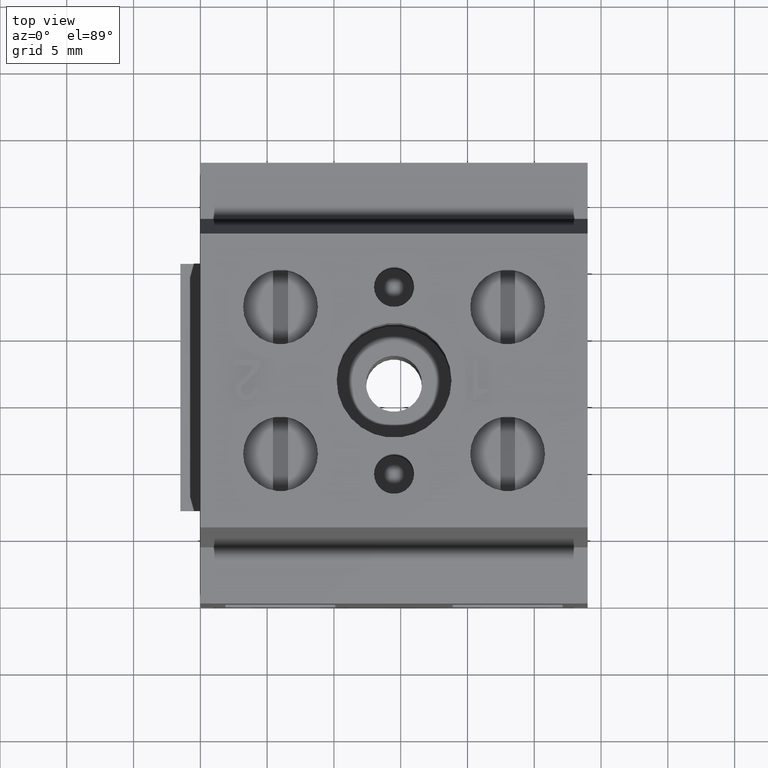
[diagram: clean part render]
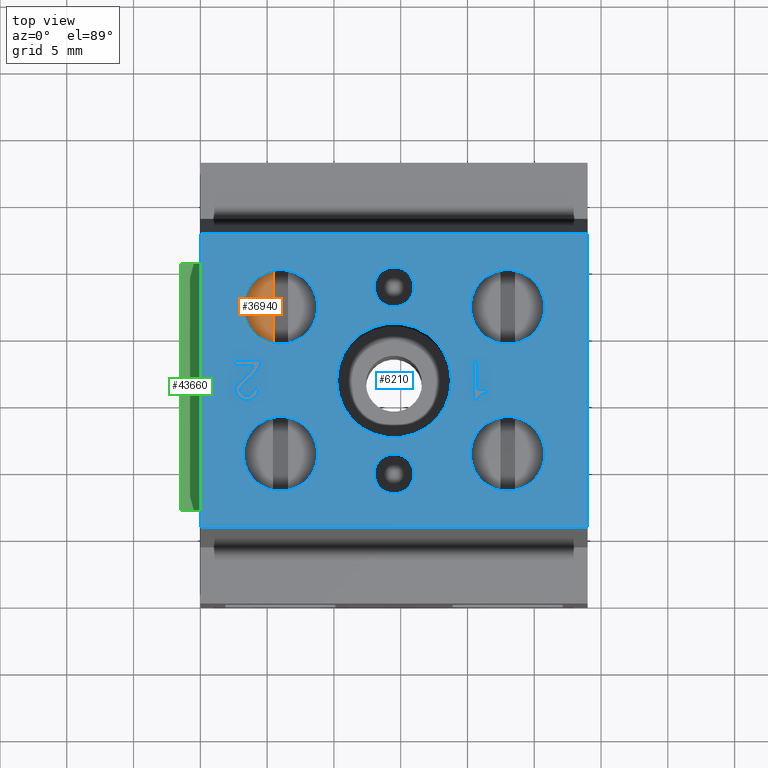
[diagram: same view with three faces highlighted in distinct colors, each labeled with its STEP entity id]
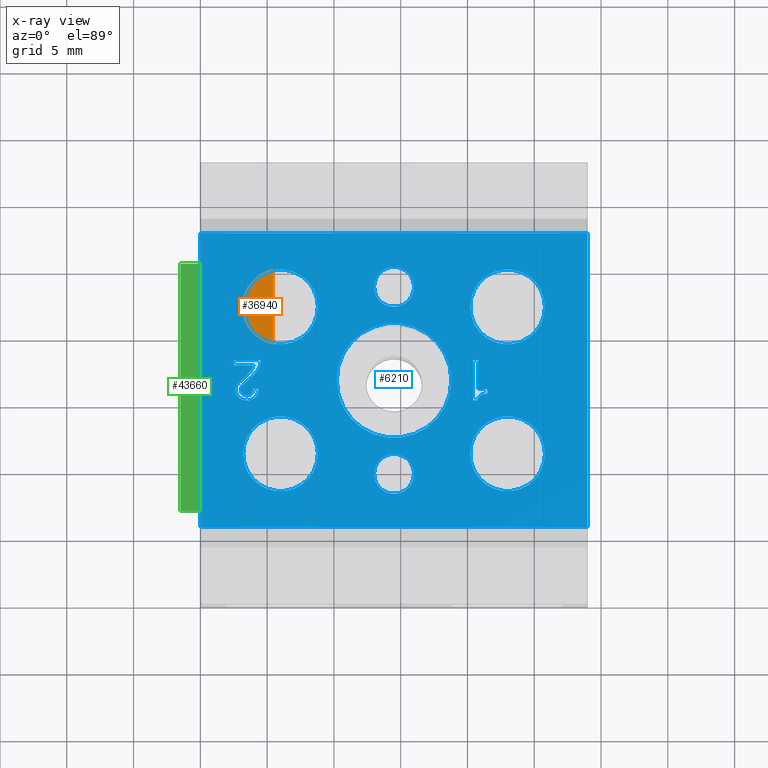
[diagram: x-ray of the same camera — body ghosted, the three highlighted faces saturated]
A machine part, top view with three faces highlighted in distinct colors.
The next image is the same camera in x-ray (body ghosted, the three faces saturated) — at least one of them is partly hidden behind the body in this view.
Their STEP definitions:

[orange] entity #36940 — the highlighted planar face has unit normal (0, -0, -1).
#31270=CARTESIAN_POINT('',(67.8289368888558,1.08412096955471,23.));
#31280=DIRECTION('',(1.,0.,0.));
#31290=DIRECTION('',(0.,0.,1.));
#31300=AXIS2_PLACEMENT_3D('',#31270,#31280,#31290);
#31310=CIRCLE('',#31300,2.8);
#31480=CARTESIAN_POINT('',(67.8289368888558,3.82957175221318,23.55));
#31490=VERTEX_POINT('',#31480);
#31520=CARTESIAN_POINT('',(67.8289368888558,1.08412096955471,25.8));
#31530=VERTEX_POINT('',#31520);
#31540=EDGE_CURVE('',#31490,#31530,#31310,.T.);
#36630=CARTESIAN_POINT('',(67.8289368888558,-1.66132981310375,23.55));
#36640=VERTEX_POINT('',#36630);
#36670=CARTESIAN_POINT('',(67.8289368888558,-9.91587903044529,23.55));
#36680=DIRECTION('',(0.,-1.,0.));
#36690=VECTOR('',#36680,1.);
#36700=LINE('',#36670,#36690);
#36710=EDGE_CURVE('',#31490,#36640,#36700,.T.);
#36830=CARTESIAN_POINT('',(67.8289368888558,1.08412096955471,
24.5239170226016));
#36840=DIRECTION('',(-1.,0.,0.));
#36850=DIRECTION('',(0.,0.,1.));
#36860=AXIS2_PLACEMENT_3D('',#36830,#36840,#36850);
#36870=PLANE('',#36860);
#36880=EDGE_CURVE('',#31530,#36640,#31310,.T.);
#36890=ORIENTED_EDGE('',*,*,#36880,.T.);
#36900=ORIENTED_EDGE('',*,*,#31540,.T.);
#36910=ORIENTED_EDGE('',*,*,#36710,.F.);
#36920=EDGE_LOOP('',(#36910,#36900,#36890));
#36930=FACE_OUTER_BOUND('',#36920,.T.);
#36940=ADVANCED_FACE('',(#36930),#36870,.F.);

[blue] entity #6210 — the highlighted planar face has unit normal (-0, 0, 1).
#10=CARTESIAN_POINT('',(70.7713182031141,-14.5225533776328,29.));
#20=DIRECTION('',(1.,0.,0.));
#30=DIRECTION('',(0.,1.,0.));
#40=AXIS2_PLACEMENT_3D('',#10,#20,#30);
#50=PLANE('',#40);
#60=CARTESIAN_POINT('',(70.7713182031141,-11.4158790304453,14.5));
#70=DIRECTION('',(1.,0.,0.));
#80=DIRECTION('',(0.,0.,-1.));
#90=AXIS2_PLACEMENT_3D('',#60,#70,#80);
#100=CIRCLE('',#90,1.5);
#110=CARTESIAN_POINT('',(70.7713182031141,-9.91587903044529,14.5));
#120=VERTEX_POINT('',#110);
#130=CARTESIAN_POINT('',(70.7713182031141,-11.4158790304453,16.));
#140=VERTEX_POINT('',#130);
#150=EDGE_CURVE('',#120,#140,#100,.T.);
#160=ORIENTED_EDGE('',*,*,#150,.F.);
#170=CARTESIAN_POINT('',(70.7713182031141,-11.4158790304453,13.));
#180=VERTEX_POINT('',#170);
#190=EDGE_CURVE('',#140,#180,#100,.T.);
#200=ORIENTED_EDGE('',*,*,#190,.F.);
#210=EDGE_CURVE('',#180,#120,#100,.T.);
#220=ORIENTED_EDGE('',*,*,#210,.F.);
#230=EDGE_LOOP('',(#220,#200,#160));
#240=FACE_BOUND('',#230,.T.);
#250=CARTESIAN_POINT('',(70.7713182031141,2.58412096955471,14.5));
#260=DIRECTION('',(1.,0.,0.));
#270=DIRECTION('',(0.,0.,-1.));
#280=AXIS2_PLACEMENT_3D('',#250,#260,#270);
#290=CIRCLE('',#280,1.5);
#300=CARTESIAN_POINT('',(70.7713182031141,1.08412096955471,14.5));
#310=VERTEX_POINT('',#300);
#320=CARTESIAN_POINT('',(70.7713182031141,2.58412096955471,13.));
#330=VERTEX_POINT('',#320);
#340=EDGE_CURVE('',#310,#330,#290,.T.);
#350=ORIENTED_EDGE('',*,*,#340,.F.);
#360=CARTESIAN_POINT('',(70.7713182031141,2.58412096955471,16.));
#370=VERTEX_POINT('',#360);
#380=EDGE_CURVE('',#330,#370,#290,.T.);
#390=ORIENTED_EDGE('',*,*,#380,.F.);
#400=EDGE_CURVE('',#370,#310,#290,.T.);
#410=ORIENTED_EDGE('',*,*,#400,.F.);
#420=EDGE_LOOP('',(#410,#390,#350));
#430=FACE_BOUND('',#420,.T.);
#440=CARTESIAN_POINT('',(70.7713182031141,-4.41587903044529,14.5));
#450=DIRECTION('',(1.,0.,0.));
#460=DIRECTION('',(0.,0.,1.));
#470=AXIS2_PLACEMENT_3D('',#440,#450,#460);
#480=CIRCLE('',#470,4.3);
#490=CARTESIAN_POINT('',(70.7713182031141,-4.41587903044529,18.8));
#500=VERTEX_POINT('',#490);
#510=CARTESIAN_POINT('',(70.7713182031141,-4.41587903044529,10.2));
#520=VERTEX_POINT('',#510);
#530=EDGE_CURVE('',#500,#520,#480,.T.);
#540=ORIENTED_EDGE('',*,*,#530,.F.);
#550=EDGE_CURVE('',#520,#500,#480,.T.);
#560=ORIENTED_EDGE('',*,*,#550,.F.);
#570=EDGE_LOOP('',(#560,#540));
#580=FACE_BOUND('',#570,.T.);
#590=CARTESIAN_POINT('',(70.7713182031141,-9.91587903044529,23.));
#600=DIRECTION('',(1.,0.,0.));
#610=DIRECTION('',(0.,0.,1.));
#620=AXIS2_PLACEMENT_3D('',#590,#600,#610);
#630=CIRCLE('',#620,2.8);
#640=CARTESIAN_POINT('',(70.7713182031141,-9.91587903044529,25.8));
#650=VERTEX_POINT('',#640);
#660=CARTESIAN_POINT('',(70.7713182031141,-9.91587903044529,20.2));
#670=VERTEX_POINT('',#660);
#680=EDGE_CURVE('',#650,#670,#630,.T.);
#690=ORIENTED_EDGE('',*,*,#680,.F.);
#700=EDGE_CURVE('',#670,#650,#630,.T.);
#710=ORIENTED_EDGE('',*,*,#700,.F.);
#720=EDGE_LOOP('',(#710,#690));
#730=FACE_BOUND('',#720,.T.);
#740=CARTESIAN_POINT('',(70.7713182031141,1.08412096955471,23.));
#750=DIRECTION('',(1.,0.,0.));
#760=DIRECTION('',(0.,0.,1.));
#770=AXIS2_PLACEMENT_3D('',#740,#750,#760);
#780=CIRCLE('',#770,2.8);
#790=CARTESIAN_POINT('',(70.7713182031141,1.08412096955471,25.8));
#800=VERTEX_POINT('',#790);
#810=CARTESIAN_POINT('',(70.7713182031141,1.08412096955471,20.2));
#820=VERTEX_POINT('',#810);
#830=EDGE_CURVE('',#800,#820,#780,.T.);
#840=ORIENTED_EDGE('',*,*,#830,.F.);
#850=EDGE_CURVE('',#820,#800,#780,.T.);
#860=ORIENTED_EDGE('',*,*,#850,.F.);
#870=EDGE_LOOP('',(#860,#840));
#880=FACE_BOUND('',#870,.T.);
#890=CARTESIAN_POINT('',(70.7713182031141,-5.91587903044529,0.));
#900=DIRECTION('',(0.,0.,1.));
#910=VECTOR('',#900,1.);
#920=LINE('',#890,#910);
#930=CARTESIAN_POINT('',(70.7713182031141,-5.91587903044529,8.2875));
#940=VERTEX_POINT('',#930);
#950=CARTESIAN_POINT('',(70.7713182031141,-5.91587903044529,8.5875));
#960=VERTEX_POINT('',#950);
#970=EDGE_CURVE('',#940,#960,#920,.T.);
#980=ORIENTED_EDGE('',*,*,#970,.T.);
#990=CARTESIAN_POINT('',(70.7713182031141,0.,6.31554032318492));
#1000=DIRECTION('',(0.,-0.948683298050515,0.316227766016836));
#1010=VECTOR('',#1000,1.);
#1020=LINE('',#990,#1010);
#1030=CARTESIAN_POINT('',(70.7713182031141,-5.80337903044529,8.25));
#1040=VERTEX_POINT('',#1030);
#1050=EDGE_CURVE('',#1040,#940,#1020,.T.);
#1060=ORIENTED_EDGE('',*,*,#1050,.T.);
#1070=CARTESIAN_POINT('',(70.7713182031141,0.,3.89746572716602));
#1080=DIRECTION('',(0.,-0.799999999999999,0.600000000000002));
#1090=VECTOR('',#1080,1.);
#1100=LINE('',#1070,#1090);
#1110=CARTESIAN_POINT('',(70.7713182031141,-5.65337903044529,8.1375));
#1120=VERTEX_POINT('',#1110);
#1130=EDGE_CURVE('',#1120,#1040,#1100,.T.);
#1140=ORIENTED_EDGE('',*,*,#1130,.T.);
#1150=CARTESIAN_POINT('',(70.7713182031141,0.,2.48412096955476));
#1160=DIRECTION('',(0.,-0.70710678118655,0.707106781186545));
#1170=VECTOR('',#1160,1.);
#1180=LINE('',#1150,#1170);
#1190=CARTESIAN_POINT('',(70.7713182031141,-5.54087903044529,8.025));
#1200=VERTEX_POINT('',#1190);
#1210=EDGE_CURVE('',#1200,#1120,#1180,.T.);
#1220=ORIENTED_EDGE('',*,*,#1210,.T.);
#1230=CARTESIAN_POINT('',(70.7713182031141,-1.52837903044529,0.));
#1240=DIRECTION('',(0.,-0.447213595499958,0.894427190999916));
#1250=VECTOR('',#1240,1.);
#1260=LINE('',#1230,#1250);
#1270=CARTESIAN_POINT('',(70.7713182031141,-5.46587903044529,7.875));
#1280=VERTEX_POINT('',#1270);
#1290=EDGE_CURVE('',#1280,#1200,#1260,.T.);
#1300=ORIENTED_EDGE('',*,*,#1290,.T.);
#1310=CARTESIAN_POINT('',(70.7713182031141,-2.84087903044533,0.));
#1320=DIRECTION('',(0.,-0.316227766016833,0.948683298050515));
#1330=VECTOR('',#1320,1.);
#1340=LINE('',#1310,#1330);
#1350=CARTESIAN_POINT('',(70.7713182031141,-5.42837903044529,7.7625));
#1360=VERTEX_POINT('',#1350);
#1370=EDGE_CURVE('',#1360,#1280,#1340,.T.);
#1380=ORIENTED_EDGE('',*,*,#1370,.T.);
#1390=CARTESIAN_POINT('',(70.7713182031141,-3.87587903044526,0.));
#1400=DIRECTION('',(0.,-0.196116135138187,0.98058067569092));
#1410=VECTOR('',#1400,1.);
#1420=LINE('',#1390,#1410);
#1430=CARTESIAN_POINT('',(70.7713182031141,-5.39087903044528,7.575));
#1440=VERTEX_POINT('',#1430);
#1450=EDGE_CURVE('',#1440,#1360,#1420,.T.);
#1460=ORIENTED_EDGE('',*,*,#1450,.T.);
#1470=CARTESIAN_POINT('',(70.7713182031141,-5.39087903044529,0.));
#1480=DIRECTION('',(0.,0.,1.));
#1490=VECTOR('',#1480,1.);
#1500=LINE('',#1470,#1490);
#1510=CARTESIAN_POINT('',(70.7713182031141,-5.39087903044529,7.5));
#1520=VERTEX_POINT('',#1510);
#1530=EDGE_CURVE('',#1520,#1440,#1500,.T.);
#1540=ORIENTED_EDGE('',*,*,#1530,.T.);
#1550=CARTESIAN_POINT('',(70.7713182031141,0.,7.5));
#1560=DIRECTION('',(0.,-1.,0.));
#1570=VECTOR('',#1560,1.);
#1580=LINE('',#1550,#1570);
#1590=CARTESIAN_POINT('',(70.7713182031141,-5.09087903044529,7.5));
#1600=VERTEX_POINT('',#1590);
#1610=EDGE_CURVE('',#1600,#1520,#1580,.T.);
#1620=ORIENTED_EDGE('',*,*,#1610,.T.);
#1630=CARTESIAN_POINT('',(70.7713182031141,-5.09087903044529,0.));
#1640=DIRECTION('',(0.,0.,-1.));
#1650=VECTOR('',#1640,1.);
#1660=LINE('',#1630,#1650);
#1670=CARTESIAN_POINT('',(70.7713182031141,-5.09087903044529,8.2125));
#1680=VERTEX_POINT('',#1670);
#1690=EDGE_CURVE('',#1680,#1600,#1660,.T.);
#1700=ORIENTED_EDGE('',*,*,#1690,.T.);
#1710=CARTESIAN_POINT('',(70.7713182031141,0.,8.2125));
#1720=DIRECTION('',(0.,-1.,0.));
#1730=VECTOR('',#1720,1.);
#1740=LINE('',#1710,#1730);
#1750=CARTESIAN_POINT('',(70.7713182031141,-2.91587903044529,8.2125));
#1760=VERTEX_POINT('',#1750);
#1770=EDGE_CURVE('',#1760,#1680,#1740,.T.);
#1780=ORIENTED_EDGE('',*,*,#1770,.T.);
#1790=CARTESIAN_POINT('',(70.7713182031141,-2.91587903044529,0.));
#1800=DIRECTION('',(0.,0.,-1.));
#1810=VECTOR('',#1800,1.);
#1820=LINE('',#1790,#1810);
#1830=CARTESIAN_POINT('',(70.7713182031141,-2.91587903044529,8.5875));
#1840=VERTEX_POINT('',#1830);
#1850=EDGE_CURVE('',#1840,#1760,#1820,.T.);
#1860=ORIENTED_EDGE('',*,*,#1850,.T.);
#1870=CARTESIAN_POINT('',(70.7713182031141,0.,8.5875));
#1880=DIRECTION('',(0.,1.,0.));
#1890=VECTOR('',#1880,1.);
#1900=LINE('',#1870,#1890);
#1910=EDGE_CURVE('',#960,#1840,#1900,.T.);
#1920=ORIENTED_EDGE('',*,*,#1910,.T.);
#1930=EDGE_LOOP('',(#1920,#1860,#1780,#1700,#1620,#1540,#1460,#1380,
#1300,#1220,#1140,#1060,#980));
#1940=FACE_BOUND('',#1930,.T.);
#1950=CARTESIAN_POINT('',(70.7713182031141,-3.29087903044529,0.));
#1960=DIRECTION('',(0.,0.,1.));
#1970=VECTOR('',#1960,1.);
#1980=LINE('',#1950,#1970);
#1990=CARTESIAN_POINT('',(70.7713182031141,-3.29087903044529,25.025));
#2000=VERTEX_POINT('',#1990);
#2010=CARTESIAN_POINT('',(70.7713182031141,-3.29087903044529,26.4875));
#2020=VERTEX_POINT('',#2010);
#2030=EDGE_CURVE('',#2000,#2020,#1980,.T.);
#2040=ORIENTED_EDGE('',*,*,#2030,.T.);
#2050=CARTESIAN_POINT('',(70.7713182031141,0.,23.9280403231849));
#2060=DIRECTION('',(0.,0.948683298050515,-0.316227766016836));
#2070=VECTOR('',#2060,1.);
#2080=LINE('',#2050,#2070);
#2090=CARTESIAN_POINT('',(70.7713182031141,-3.51587903044528,25.1));
#2100=VERTEX_POINT('',#2090);
#2110=EDGE_CURVE('',#2100,#2000,#2080,.T.);
#2120=ORIENTED_EDGE('',*,*,#2110,.T.);
#2130=CARTESIAN_POINT('',(70.7713182031141,0.,22.5886578353962));
#2140=DIRECTION('',(0.,0.813733471206735,-0.581238193719096));
#2150=VECTOR('',#2140,1.);
#2160=LINE('',#2130,#2150);
#2170=CARTESIAN_POINT('',(70.7713182031141,-3.77837903044529,25.2875));
#2180=VERTEX_POINT('',#2170);
#2190=EDGE_CURVE('',#2180,#2100,#2160,.T.);
#2200=ORIENTED_EDGE('',*,*,#2190,.T.);
#2210=CARTESIAN_POINT('',(70.7713182031141,0.,21.9814183483604));
#2220=DIRECTION('',(0.,0.752576694706877,-0.658504607868519));
#2230=VECTOR('',#2220,1.);
#2240=LINE('',#2210,#2230);
#2250=CARTESIAN_POINT('',(70.7713182031141,-4.07837903044529,25.55));
#2260=VERTEX_POINT('',#2250);
#2270=EDGE_CURVE('',#2260,#2180,#2240,.T.);
#2280=ORIENTED_EDGE('',*,*,#2270,.T.);
#2290=CARTESIAN_POINT('',(70.7713182031141,17.8216209695548,0.));
#2300=DIRECTION('',(0.,0.650791373455969,-0.759256602365296));
#2310=VECTOR('',#2300,1.);
#2320=LINE('',#2290,#2310);
#2330=CARTESIAN_POINT('',(70.7713182031141,-4.30337903044529,25.8125));
#2340=VERTEX_POINT('',#2330);
#2350=EDGE_CURVE('',#2340,#2260,#2320,.T.);
#2360=ORIENTED_EDGE('',*,*,#2350,.T.);
#2370=CARTESIAN_POINT('',(70.7713182031141,18.2825584695548,0.));
#2380=DIRECTION('',(0.,0.65850460786852,-0.752576694706876));
#2390=VECTOR('',#2380,1.);
#2400=LINE('',#2370,#2390);
#2410=CARTESIAN_POINT('',(70.7713182031141,-4.56587903044528,26.1125));
#2420=VERTEX_POINT('',#2410);
#2430=EDGE_CURVE('',#2420,#2340,#2400,.T.);
#2440=ORIENTED_EDGE('',*,*,#2430,.T.);
#2450=CARTESIAN_POINT('',(70.7713182031141,21.5466209695541,0.));
#2460=DIRECTION('',(0.,0.707106781186539,-0.707106781186556));
#2470=VECTOR('',#2460,1.);
#2480=LINE('',#2450,#2470);
#2490=CARTESIAN_POINT('',(70.7713182031141,-4.64087903044528,26.1875));
#2500=VERTEX_POINT('',#2490);
#2510=EDGE_CURVE('',#2500,#2420,#2480,.T.);
#2520=ORIENTED_EDGE('',*,*,#2510,.T.);
#2530=CARTESIAN_POINT('',(70.7713182031141,0.,23.0935806463698));
#2540=DIRECTION('',(0.,0.832050294337844,-0.554700196225229));
#2550=VECTOR('',#2540,1.);
#2560=LINE('',#2530,#2550);
#2570=CARTESIAN_POINT('',(70.7713182031141,-4.86587903044529,26.3375));
#2580=VERTEX_POINT('',#2570);
#2590=EDGE_CURVE('',#2580,#2500,#2560,.T.);
#2600=ORIENTED_EDGE('',*,*,#2590,.T.);
#2610=CARTESIAN_POINT('',(70.7713182031141,0.,25.364324193911));
#2620=DIRECTION('',(0.,0.980580675690921,-0.196116135138182));
#2630=VECTOR('',#2620,1.);
#2640=LINE('',#2610,#2630);
#2650=CARTESIAN_POINT('',(70.7713182031141,-5.05337903044529,26.375));
#2660=VERTEX_POINT('',#2650);
#2670=EDGE_CURVE('',#2660,#2580,#2640,.T.);
#2680=ORIENTED_EDGE('',*,*,#2670,.T.);
#2690=CARTESIAN_POINT('',(70.7713182031141,0.,26.375));
#2700=DIRECTION('',(0.,1.,0.));
#2710=VECTOR('',#2700,1.);
#2720=LINE('',#2690,#2710);
#2730=CARTESIAN_POINT('',(70.7713182031141,-5.20337903044529,26.375));
#2740=VERTEX_POINT('',#2730);
#2750=EDGE_CURVE('',#2740,#2660,#2720,.T.);
#2760=ORIENTED_EDGE('',*,*,#2750,.T.);
#2770=CARTESIAN_POINT('',(70.7713182031141,0.,27.415675806089));
#2780=DIRECTION('',(0.,0.980580675690921,0.196116135138182));
#2790=VECTOR('',#2780,1.);
#2800=LINE('',#2770,#2790);
#2810=CARTESIAN_POINT('',(70.7713182031141,-5.39087903044529,26.3375));
#2820=VERTEX_POINT('',#2810);
#2830=EDGE_CURVE('',#2820,#2740,#2800,.T.);
#2840=ORIENTED_EDGE('',*,*,#2830,.T.);
#2850=CARTESIAN_POINT('',(70.7713182031141,0.,29.9314193536302));
#2860=DIRECTION('',(0.,0.832050294337844,0.554700196225229));
#2870=VECTOR('',#2860,1.);
#2880=LINE('',#2850,#2870);
#2890=CARTESIAN_POINT('',(70.7713182031141,-5.61587903044529,26.1875));
#2900=VERTEX_POINT('',#2890);
#2910=EDGE_CURVE('',#2900,#2820,#2880,.T.);
#2920=ORIENTED_EDGE('',*,*,#2910,.T.);
#2930=CARTESIAN_POINT('',(70.7713182031141,-31.8033790304451,0.));
#2940=DIRECTION('',(0.,0.707106781186545,0.70710678118655));
#2950=VECTOR('',#2940,1.);
#2960=LINE('',#2930,#2950);
#2970=CARTESIAN_POINT('',(70.7713182031141,-5.76587903044528,26.0375));
#2980=VERTEX_POINT('',#2970);
#2990=EDGE_CURVE('',#2980,#2900,#2960,.T.);
#3000=ORIENTED_EDGE('',*,*,#2990,.T.);
#3010=CARTESIAN_POINT('',(70.7713182031141,-18.7846290304454,0.));
#3020=DIRECTION('',(0.,0.447213595499961,0.894427190999915));
#3030=VECTOR('',#3020,1.);
#3040=LINE('',#3010,#3030);
#3050=CARTESIAN_POINT('',(70.7713182031141,-5.87837903044528,25.8125));
#3060=VERTEX_POINT('',#3050);
#3070=EDGE_CURVE('',#3060,#2980,#3040,.T.);
#3080=ORIENTED_EDGE('',*,*,#3070,.T.);
#3090=CARTESIAN_POINT('',(70.7713182031141,-11.0408790304452,0.));
#3100=DIRECTION('',(0.,0.196116135138182,0.980580675690921));
#3110=VECTOR('',#3100,1.);
#3120=LINE('',#3090,#3110);
#3130=CARTESIAN_POINT('',(70.7713182031141,-5.91587903044529,25.625));
#3140=VERTEX_POINT('',#3130);
#3150=EDGE_CURVE('',#3140,#3060,#3120,.T.);
#3160=ORIENTED_EDGE('',*,*,#3150,.T.);
#3170=CARTESIAN_POINT('',(70.7713182031141,-5.91587903044529,0.));
#3180=DIRECTION('',(0.,0.,1.));
#3190=VECTOR('',#3180,1.);
#3200=LINE('',#3170,#3190);
#3210=CARTESIAN_POINT('',(70.7713182031141,-5.91587903044529,25.4));
#3220=VERTEX_POINT('',#3210);
#3230=EDGE_CURVE('',#3220,#3140,#3200,.T.);
#3240=ORIENTED_EDGE('',*,*,#3230,.T.);
#3250=CARTESIAN_POINT('',(70.7713182031141,-0.835879030445334,0.));
#3260=DIRECTION('',(0.,-0.196116135138182,0.980580675690921));
#3270=VECTOR('',#3260,1.);
#3280=LINE('',#3250,#3270);
#3290=CARTESIAN_POINT('',(70.7713182031141,-5.87837903044529,25.2125));
#3300=VERTEX_POINT('',#3290);
#3310=EDGE_CURVE('',#3300,#3220,#3280,.T.);
#3320=ORIENTED_EDGE('',*,*,#3310,.T.);
#3330=CARTESIAN_POINT('',(70.7713182031141,6.72787096955476,0.));
#3340=DIRECTION('',(0.,-0.447213595499959,0.894427190999915));
#3350=VECTOR('',#3340,1.);
#3360=LINE('',#3330,#3350);
#3370=CARTESIAN_POINT('',(70.7713182031141,-5.76587903044529,24.9875));
#3380=VERTEX_POINT('',#3370);
#3390=EDGE_CURVE('',#3380,#3300,#3360,.T.);
#3400=ORIENTED_EDGE('',*,*,#3390,.T.);
#3410=CARTESIAN_POINT('',(70.7713182031141,19.2216209695547,0.));
#3420=DIRECTION('',(0.,-0.707106781186548,0.707106781186548));
#3430=VECTOR('',#3420,1.);
#3440=LINE('',#3410,#3430);
#3450=CARTESIAN_POINT('',(70.7713182031141,-5.61587903044529,24.8375));
#3460=VERTEX_POINT('',#3450);
#3470=EDGE_CURVE('',#3460,#3380,#3440,.T.);
#3480=ORIENTED_EDGE('',*,*,#3470,.T.);
#3490=CARTESIAN_POINT('',(70.7713182031141,0.,21.0935806463698));
#3500=DIRECTION('',(0.,-0.832050294337844,0.554700196225229));
#3510=VECTOR('',#3500,1.);
#3520=LINE('',#3490,#3510);
#3530=CARTESIAN_POINT('',(70.7713182031141,-5.39087903044528,24.6875));
#3540=VERTEX_POINT('',#3530);
#3550=EDGE_CURVE('',#3540,#3460,#3520,.T.);
#3560=ORIENTED_EDGE('',*,*,#3550,.T.);
#3570=CARTESIAN_POINT('',(70.7713182031141,0.,23.609324193911));
#3580=DIRECTION('',(0.,-0.980580675690921,0.196116135138182));
#3590=VECTOR('',#3580,1.);
#3600=LINE('',#3570,#3590);
#3610=CARTESIAN_POINT('',(70.7713182031141,-5.20337903044529,24.65));
#3620=VERTEX_POINT('',#3610);
#3630=EDGE_CURVE('',#3620,#3540,#3600,.T.);
#3640=ORIENTED_EDGE('',*,*,#3630,.T.);
#3650=CARTESIAN_POINT('',(70.7713182031141,0.,24.65));
#3660=DIRECTION('',(0.,-1.,0.));
#3670=VECTOR('',#3660,1.);
#3680=LINE('',#3650,#3670);
#3690=CARTESIAN_POINT('',(70.7713182031141,-5.05337903044529,24.65));
#3700=VERTEX_POINT('',#3690);
#3710=EDGE_CURVE('',#3700,#3620,#3680,.T.);
#3720=ORIENTED_EDGE('',*,*,#3710,.T.);
#3730=CARTESIAN_POINT('',(70.7713182031141,-5.05337903044529,0.));
#3740=DIRECTION('',(0.,0.,-1.));
#3750=VECTOR('',#3740,1.);
#3760=LINE('',#3730,#3750);
#3770=CARTESIAN_POINT('',(70.7713182031141,-5.05337903044529,25.0625));
#3780=VERTEX_POINT('',#3770);
#3790=EDGE_CURVE('',#3780,#3700,#3760,.T.);
#3800=ORIENTED_EDGE('',*,*,#3790,.T.);
#3810=CARTESIAN_POINT('',(70.7713182031141,0.,25.0625));
#3820=DIRECTION('',(0.,1.,0.));
#3830=VECTOR('',#3820,1.);
#3840=LINE('',#3810,#3830);
#3850=CARTESIAN_POINT('',(70.7713182031141,-5.20337903044529,25.0625));
#3860=VERTEX_POINT('',#3850);
#3870=EDGE_CURVE('',#3860,#3780,#3840,.T.);
#3880=ORIENTED_EDGE('',*,*,#3870,.T.);
#3890=CARTESIAN_POINT('',(70.7713182031141,0.,23.3280403231849));
#3900=DIRECTION('',(0.,0.948683298050515,-0.316227766016833));
#3910=VECTOR('',#3900,1.);
#3920=LINE('',#3890,#3910);
#3930=CARTESIAN_POINT('',(70.7713182031141,-5.31587903044529,25.1));
#3940=VERTEX_POINT('',#3930);
#3950=EDGE_CURVE('',#3940,#3860,#3920,.T.);
#3960=ORIENTED_EDGE('',*,*,#3950,.T.);
#3970=CARTESIAN_POINT('',(70.7713182031141,0.,21.5560806463698));
#3980=DIRECTION('',(0.,0.832050294337843,-0.554700196225231));
#3990=VECTOR('',#3980,1.);
#4000=LINE('',#3970,#3990);
#4010=CARTESIAN_POINT('',(70.7713182031141,-5.42837903044529,25.175));
#4020=VERTEX_POINT('',#4010);
#4030=EDGE_CURVE('',#4020,#3940,#4000,.T.);
#4040=ORIENTED_EDGE('',*,*,#4030,.T.);
#4050=CARTESIAN_POINT('',(70.7713182031141,11.3549543028881,0.));
#4060=DIRECTION('',(0.,0.554700196225231,-0.832050294337843));
#4070=VECTOR('',#4060,1.);
#4080=LINE('',#4050,#4070);
#4090=CARTESIAN_POINT('',(70.7713182031141,-5.50337903044529,25.2875));
#4100=VERTEX_POINT('',#4090);
#4110=EDGE_CURVE('',#4100,#4020,#4080,.T.);
#4120=ORIENTED_EDGE('',*,*,#4110,.T.);
#4130=CARTESIAN_POINT('',(70.7713182031141,0.818495969554639,0.));
#4140=DIRECTION('',(0.,0.24253562503633,-0.970142500145333));
#4150=VECTOR('',#4140,1.);
#4160=LINE('',#4130,#4150);
#4170=CARTESIAN_POINT('',(70.7713182031141,-5.54087903044529,25.4375));
#4180=VERTEX_POINT('',#4170);
#4190=EDGE_CURVE('',#4180,#4100,#4160,.T.);
#4200=ORIENTED_EDGE('',*,*,#4190,.T.);
#4210=CARTESIAN_POINT('',(70.7713182031141,-5.54087903044529,0.));
#4220=DIRECTION('',(0.,0.,-1.));
#4230=VECTOR('',#4220,1.);
#4240=LINE('',#4210,#4230);
#4250=CARTESIAN_POINT('',(70.7713182031141,-5.54087903044529,25.5875));
#4260=VERTEX_POINT('',#4250);
#4270=EDGE_CURVE('',#4260,#4180,#4240,.T.);
#4280=ORIENTED_EDGE('',*,*,#4270,.T.);
#4290=CARTESIAN_POINT('',(70.7713182031141,-11.9377540304453,0.));
#4300=DIRECTION('',(0.,-0.242535625036333,-0.970142500145332));
#4310=VECTOR('',#4300,1.);
#4320=LINE('',#4290,#4310);
#4330=CARTESIAN_POINT('',(70.7713182031141,-5.50337903044529,25.7375));
#4340=VERTEX_POINT('',#4330);
#4350=EDGE_CURVE('',#4340,#4260,#4320,.T.);
#4360=ORIENTED_EDGE('',*,*,#4350,.T.);
#4370=CARTESIAN_POINT('',(70.7713182031141,-22.6617123637786,0.));
#4380=DIRECTION('',(0.,-0.554700196225228,-0.832050294337845));
#4390=VECTOR('',#4380,1.);
#4400=LINE('',#4370,#4390);
#4410=CARTESIAN_POINT('',(70.7713182031141,-5.42837903044528,25.85));
#4420=VERTEX_POINT('',#4410);
#4430=EDGE_CURVE('',#4420,#4340,#4400,.T.);
#4440=ORIENTED_EDGE('',*,*,#4430,.T.);
#4450=CARTESIAN_POINT('',(70.7713182031141,0.,29.4689193536302));
#4460=DIRECTION('',(0.,-0.832050294337846,-0.554700196225226));
#4470=VECTOR('',#4460,1.);
#4480=LINE('',#4450,#4470);
#4490=CARTESIAN_POINT('',(70.7713182031141,-5.31587903044529,25.925));
#4500=VERTEX_POINT('',#4490);
#4510=EDGE_CURVE('',#4500,#4420,#4480,.T.);
#4520=ORIENTED_EDGE('',*,*,#4510,.T.);
#4530=CARTESIAN_POINT('',(70.7713182031141,0.,27.6969596768152));
#4540=DIRECTION('',(0.,-0.948683298050511,-0.316227766016847));
#4550=VECTOR('',#4540,1.);
#4560=LINE('',#4530,#4550);
#4570=CARTESIAN_POINT('',(70.7713182031141,-5.20337903044529,25.9625));
#4580=VERTEX_POINT('',#4570);
#4590=EDGE_CURVE('',#4580,#4500,#4560,.T.);
#4600=ORIENTED_EDGE('',*,*,#4590,.T.);
#4610=CARTESIAN_POINT('',(70.7713182031141,0.,25.9625));
#4620=DIRECTION('',(0.,-1.,0.));
#4630=VECTOR('',#4620,1.);
#4640=LINE('',#4610,#4630);
#4650=CARTESIAN_POINT('',(70.7713182031141,-5.05337903044529,25.9625));
#4660=VERTEX_POINT('',#4650);
#4670=EDGE_CURVE('',#4660,#4580,#4640,.T.);
#4680=ORIENTED_EDGE('',*,*,#4670,.T.);
#4690=CARTESIAN_POINT('',(70.7713182031141,0.,24.2780403231848));
#4700=DIRECTION('',(0.,-0.94868329805051,0.316227766016849));
#4710=VECTOR('',#4700,1.);
#4720=LINE('',#4690,#4710);
#4730=CARTESIAN_POINT('',(70.7713182031141,-4.94087903044529,25.925));
#4740=VERTEX_POINT('',#4730);
#4750=EDGE_CURVE('',#4740,#4660,#4720,.T.);
#4760=ORIENTED_EDGE('',*,*,#4750,.T.);
#4770=CARTESIAN_POINT('',(70.7713182031141,0.,22.6310806463699));
#4780=DIRECTION('',(0.,-0.832050294337848,0.554700196225223));
#4790=VECTOR('',#4780,1.);
#4800=LINE('',#4770,#4790);
#4810=CARTESIAN_POINT('',(70.7713182031141,-4.82837903044529,25.85));
#4820=VERTEX_POINT('',#4810);
#4830=EDGE_CURVE('',#4820,#4740,#4800,.T.);
#4840=ORIENTED_EDGE('',*,*,#4830,.T.);
#4850=CARTESIAN_POINT('',(70.7713182031141,21.0216209695547,0.));
#4860=DIRECTION('',(0.,-0.707106781186548,0.707106781186548));
#4870=VECTOR('',#4860,1.);
#4880=LINE('',#4850,#4870);
#4890=CARTESIAN_POINT('',(70.7713182031141,-4.34087903044529,25.3625));
#4900=VERTEX_POINT('',#4890);
#4910=EDGE_CURVE('',#4900,#4820,#4880,.T.);
#4920=ORIENTED_EDGE('',*,*,#4910,.T.);
#4930=CARTESIAN_POINT('',(70.7713182031141,16.7945376362214,0.));
#4940=DIRECTION('',(0.,-0.64018439966448,0.768221279597375));
#4950=VECTOR('',#4940,1.);
#4960=LINE('',#4930,#4950);
#4970=CARTESIAN_POINT('',(70.7713182031141,-4.15337903044529,25.1375));
#4980=VERTEX_POINT('',#4970);
#4990=EDGE_CURVE('',#4980,#4900,#4960,.T.);
#5000=ORIENTED_EDGE('',*,*,#4990,.T.);
#5010=CARTESIAN_POINT('',(70.7713182031141,0.,21.5774608310469));
#5020=DIRECTION('',(0.,-0.759256602365296,0.650791373455969));
#5030=VECTOR('',#5020,1.);
#5040=LINE('',#5010,#5030);
#5050=CARTESIAN_POINT('',(70.7713182031141,-3.89087903044529,24.9125));
#5060=VERTEX_POINT('',#5050);
#5070=EDGE_CURVE('',#5060,#4980,#5040,.T.);
#5080=ORIENTED_EDGE('',*,*,#5070,.T.);
#5090=CARTESIAN_POINT('',(70.7713182031141,0.,21.6701008079623));
#5100=DIRECTION('',(0.,-0.768221279597375,0.64018439966448));
#5110=VECTOR('',#5100,1.);
#5120=LINE('',#5090,#5110);
#5130=CARTESIAN_POINT('',(70.7713182031141,-3.66587903044529,24.725));
#5140=VERTEX_POINT('',#5130);
#5150=EDGE_CURVE('',#5140,#5060,#5120,.T.);
#5160=ORIENTED_EDGE('',*,*,#5150,.T.);
#5170=CARTESIAN_POINT('',(70.7713182031141,0.,22.6302119826027));
#5180=DIRECTION('',(0.,-0.86824314212446,0.496138938356832));
#5190=VECTOR('',#5180,1.);
#5200=LINE('',#5170,#5190);
#5210=CARTESIAN_POINT('',(70.7713182031141,-3.40337903044529,24.575));
#5220=VERTEX_POINT('',#5210);
#5230=EDGE_CURVE('',#5220,#5140,#5200,.T.);
#5240=ORIENTED_EDGE('',*,*,#5230,.T.);
#5250=CARTESIAN_POINT('',(70.7713182031141,0.,23.6026059913013));
#5260=DIRECTION('',(0.,-0.961523947640823,0.274721127897379));
#5270=VECTOR('',#5260,1.);
#5280=LINE('',#5250,#5270);
#5290=CARTESIAN_POINT('',(70.7713182031141,-3.14087903044529,24.5));
#5300=VERTEX_POINT('',#5290);
#5310=EDGE_CURVE('',#5300,#5220,#5280,.T.);
#5320=ORIENTED_EDGE('',*,*,#5310,.T.);
#5330=CARTESIAN_POINT('',(70.7713182031141,0.,24.5));
#5340=DIRECTION('',(0.,-1.,0.));
#5350=VECTOR('',#5340,1.);
#5360=LINE('',#5330,#5350);
#5370=CARTESIAN_POINT('',(70.7713182031141,-2.91587903044529,24.5));
#5380=VERTEX_POINT('',#5370);
#5390=EDGE_CURVE('',#5380,#5300,#5360,.T.);
#5400=ORIENTED_EDGE('',*,*,#5390,.T.);
#5410=CARTESIAN_POINT('',(70.7713182031141,-2.91587903044529,0.));
#5420=DIRECTION('',(0.,0.,-1.));
#5430=VECTOR('',#5420,1.);
#5440=LINE('',#5410,#5430);
#5450=CARTESIAN_POINT('',(70.7713182031141,-2.91587903044529,26.4875));
#5460=VERTEX_POINT('',#5450);
#5470=EDGE_CURVE('',#5460,#5380,#5440,.T.);
#5480=ORIENTED_EDGE('',*,*,#5470,.T.);
#5490=CARTESIAN_POINT('',(70.7713182031141,0.,26.4875));
#5500=DIRECTION('',(0.,1.,0.));
#5510=VECTOR('',#5500,1.);
#5520=LINE('',#5490,#5510);
#5530=EDGE_CURVE('',#2020,#5460,#5520,.T.);
#5540=ORIENTED_EDGE('',*,*,#5530,.T.);
#5550=EDGE_LOOP('',(#5540,#5480,#5400,#5320,#5240,#5160,#5080,#5000,
#4920,#4840,#4760,#4680,#4600,#4520,#4440,#4360,#4280,#4200,#4120,#4040,
#3960,#3880,#3800,#3720,#3640,#3560,#3480,#3400,#3320,#3240,#3160,#3080,
#3000,#2920,#2840,#2760,#2680,#2600,#2520,#2440,#2360,#2280,#2200,#2120,
#2040));
#5560=FACE_BOUND('',#5550,.T.);
#5570=CARTESIAN_POINT('',(70.7713182031141,1.08412096955471,6.));
#5580=DIRECTION('',(1.,0.,0.));
#5590=DIRECTION('',(0.,0.,1.));
#5600=AXIS2_PLACEMENT_3D('',#5570,#5580,#5590);
#5610=CIRCLE('',#5600,2.8);
#5620=CARTESIAN_POINT('',(70.7713182031141,1.08412096955471,8.8));
#5630=VERTEX_POINT('',#5620);
#5640=CARTESIAN_POINT('',(70.7713182031141,1.08412096955471,3.2));
#5650=VERTEX_POINT('',#5640);
#5660=EDGE_CURVE('',#5630,#5650,#5610,.T.);
#5670=ORIENTED_EDGE('',*,*,#5660,.F.);
#5680=EDGE_CURVE('',#5650,#5630,#5610,.T.);
#5690=ORIENTED_EDGE('',*,*,#5680,.F.);
#5700=EDGE_LOOP('',(#5690,#5670));
#5710=FACE_BOUND('',#5700,.T.);
#5720=CARTESIAN_POINT('',(70.7713182031141,-9.91587903044529,6.));
#5730=DIRECTION('',(1.,0.,0.));
#5740=DIRECTION('',(0.,0.,1.));
#5750=AXIS2_PLACEMENT_3D('',#5720,#5730,#5740);
#5760=CIRCLE('',#5750,2.8);
#5770=CARTESIAN_POINT('',(70.7713182031141,-9.91587903044529,8.8));
#5780=VERTEX_POINT('',#5770);
#5790=CARTESIAN_POINT('',(70.7713182031141,-9.91587903044529,3.2));
#5800=VERTEX_POINT('',#5790);
#5810=EDGE_CURVE('',#5780,#5800,#5760,.T.);
#5820=ORIENTED_EDGE('',*,*,#5810,.F.);
#5830=EDGE_CURVE('',#5800,#5780,#5760,.T.);
#5840=ORIENTED_EDGE('',*,*,#5830,.F.);
#5850=EDGE_LOOP('',(#5840,#5820));
#5860=FACE_BOUND('',#5850,.T.);
#5870=CARTESIAN_POINT('',(70.7713182031141,-4.41587903044529,29.));
#5880=DIRECTION('',(0.,-1.,0.));
#5890=VECTOR('',#5880,1.);
#5900=LINE('',#5870,#5890);
#5910=CARTESIAN_POINT('',(70.7713182031141,6.58412096955471,29.));
#5920=VERTEX_POINT('',#5910);
#5930=CARTESIAN_POINT('',(70.7713182031141,-15.4158790304453,29.));
#5940=VERTEX_POINT('',#5930);
#5950=EDGE_CURVE('',#5920,#5940,#5900,.T.);
#5960=ORIENTED_EDGE('',*,*,#5950,.T.);
#5970=CARTESIAN_POINT('',(70.7713182031141,6.58412096955471,
1.77635683940025E-15));
#5980=DIRECTION('',(0.,0.,1.));
#5990=VECTOR('',#5980,1.);
#6000=LINE('',#5970,#5990);
#6010=CARTESIAN_POINT('',(70.7713182031141,6.58412096955471,
1.77635683940025E-15));
#6020=VERTEX_POINT('',#6010);
#6030=EDGE_CURVE('',#6020,#5920,#6000,.T.);
#6040=ORIENTED_EDGE('',*,*,#6030,.T.);
#6050=CARTESIAN_POINT('',(70.7713182031141,-4.41587903044529,
1.77635683940025E-15));
#6060=DIRECTION('',(0.,-1.,0.));
#6070=VECTOR('',#6060,1.);
#6080=LINE('',#6050,#6070);
#6090=CARTESIAN_POINT('',(70.7713182031141,-15.4158790304453,
1.77635683940025E-15));
#6100=VERTEX_POINT('',#6090);
#6110=EDGE_CURVE('',#6020,#6100,#6080,.T.);
#6120=ORIENTED_EDGE('',*,*,#6110,.F.);
#6130=CARTESIAN_POINT('',(70.7713182031141,-15.4158790304453,
1.77635683940025E-15));
#6140=DIRECTION('',(0.,0.,1.));
#6150=VECTOR('',#6140,1.);
#6160=LINE('',#6130,#6150);
#6170=EDGE_CURVE('',#6100,#5940,#6160,.T.);
#6180=ORIENTED_EDGE('',*,*,#6170,.F.);
#6190=EDGE_LOOP('',(#6180,#6120,#6040,#5960));
#6200=FACE_OUTER_BOUND('',#6190,.T.);
#6210=ADVANCED_FACE('',(#240,#430,#580,#730,#880,#1940,#5560,#5710,#5860
,#6200),#50,.T.);

[green] entity #43660 — the highlighted planar face has unit normal (0, -0, -1).
#30290=CARTESIAN_POINT('',(41.0713182031141,-13.6658790304453,29.));
#30300=VERTEX_POINT('',#30290);
#30330=CARTESIAN_POINT('',(41.0713182031141,-4.41587903044529,29.));
#30340=DIRECTION('',(0.,1.,0.));
#30350=VECTOR('',#30340,1.);
#30360=LINE('',#30330,#30350);
#30370=CARTESIAN_POINT('',(41.0713182031141,4.83412096955472,29.));
#30380=VERTEX_POINT('',#30370);
#30390=EDGE_CURVE('',#30300,#30380,#30360,.T.);
#43220=CARTESIAN_POINT('',(41.0713182031141,-13.6658790304453,30.5));
#43230=VERTEX_POINT('',#43220);
#43260=CARTESIAN_POINT('',(41.0713182031141,-13.6658790304453,28.7));
#43270=DIRECTION('',(0.,0.,1.));
#43280=VECTOR('',#43270,1.);
#43290=LINE('',#43260,#43280);
#43300=EDGE_CURVE('',#30300,#43230,#43290,.T.);
#43430=CARTESIAN_POINT('',(41.0713182031141,-12.2158790304453,14.5));
#43440=DIRECTION('',(-1.,0.,0.));
#43450=DIRECTION('',(0.,-1.,0.));
#43460=AXIS2_PLACEMENT_3D('',#43430,#43440,#43450);
#43470=PLANE('',#43460);
#43480=CARTESIAN_POINT('',(41.0713182031141,4.83412096955472,30.5));
#43490=DIRECTION('',(0.,0.,-1.));
#43500=VECTOR('',#43490,1.);
#43510=LINE('',#43480,#43500);
#43520=CARTESIAN_POINT('',(41.0713182031141,4.83412096955472,30.5));
#43530=VERTEX_POINT('',#43520);
#43540=EDGE_CURVE('',#43530,#30380,#43510,.T.);
#43550=ORIENTED_EDGE('',*,*,#43540,.F.);
#43560=ORIENTED_EDGE('',*,*,#30390,.T.);
#43570=ORIENTED_EDGE('',*,*,#43300,.F.);
#43580=CARTESIAN_POINT('',(41.0713182031141,-13.6658790304453,30.5));
#43590=DIRECTION('',(0.,1.,0.));
#43600=VECTOR('',#43590,1.);
#43610=LINE('',#43580,#43600);
#43620=EDGE_CURVE('',#43230,#43530,#43610,.T.);
#43630=ORIENTED_EDGE('',*,*,#43620,.F.);
#43640=EDGE_LOOP('',(#43630,#43570,#43560,#43550));
#43650=FACE_OUTER_BOUND('',#43640,.T.);
#43660=ADVANCED_FACE('',(#43650),#43470,.F.);